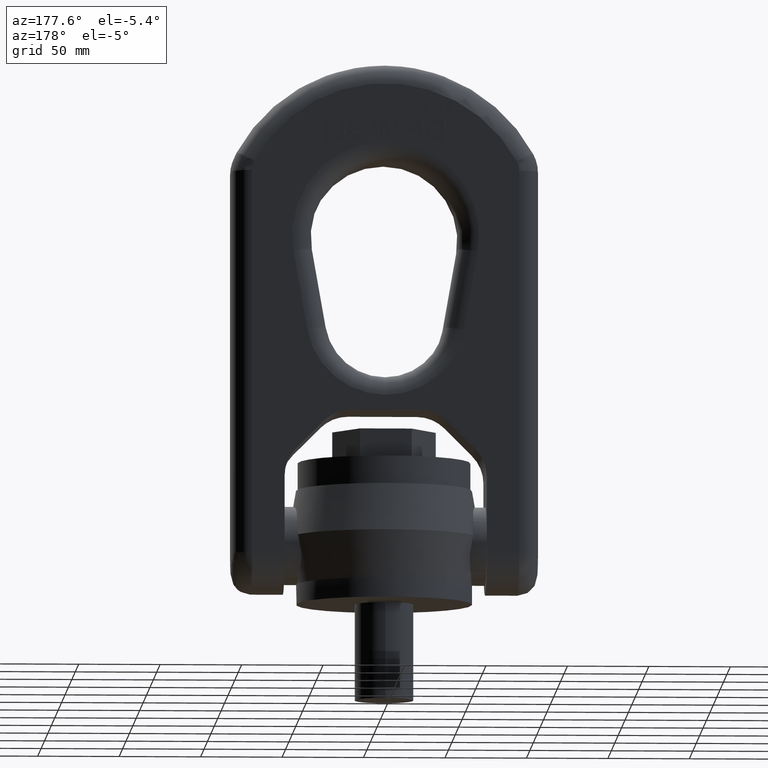
[diagram: clean part render]
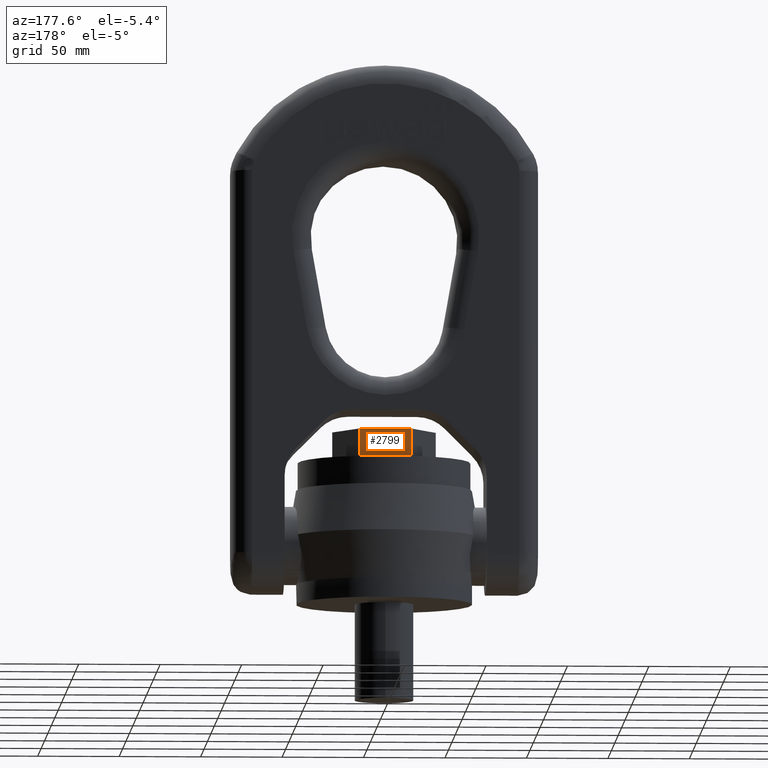
[diagram: same view with one face highlighted and labeled with its STEP entity id]
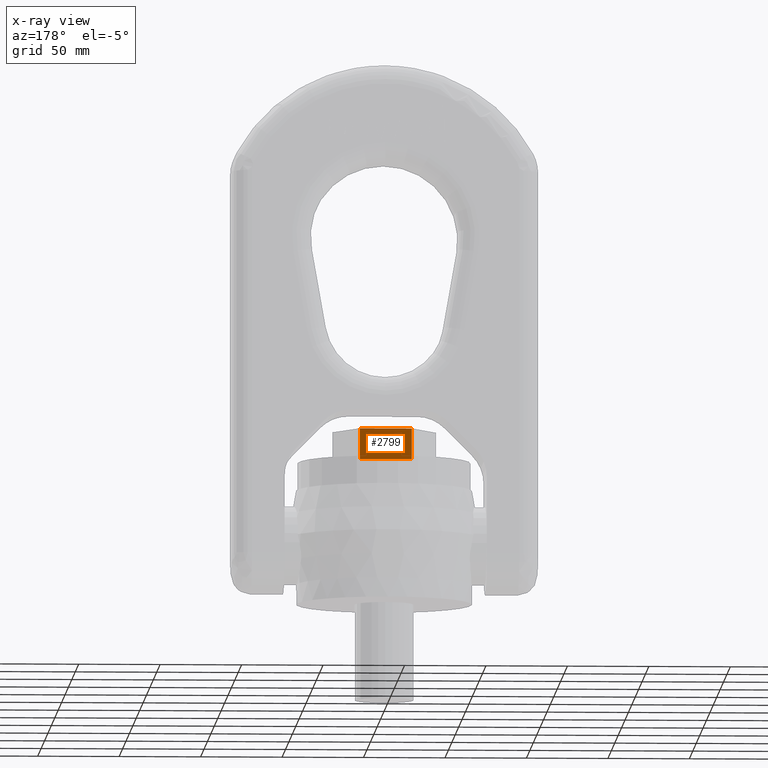
[diagram: x-ray of the same camera — body ghosted, the highlighted face saturated]
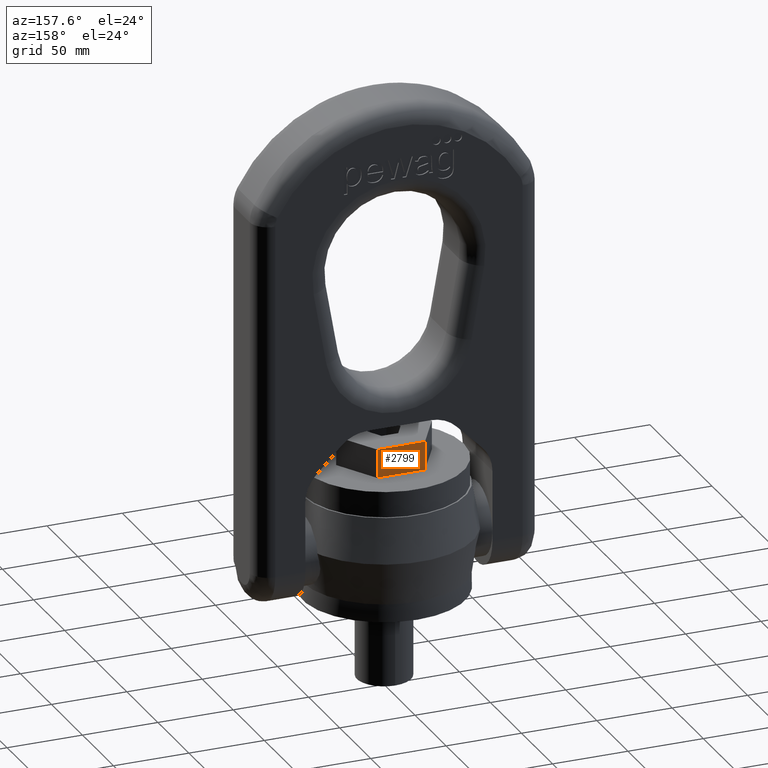
[diagram: same view with one face highlighted and labeled with its STEP entity id]
A machine part, auxiliary view. The second image highlights one B-rep face of the part: STEP entity #2799.
The next image is the same camera in x-ray: the body ghosted, the highlighted face saturated — about 0% of this face is hidden behind the body in this view.
A second angle (auxiliary view) of the same face is appended — the face is thin or edge-on in the first view.
In plain terms, the highlighted planar face has unit normal (0, -1, 0).
Its self-contained STEP definition (entity closure, byte-faithful):
#1731=LINE('',#6966,#2039);
#1742=LINE('',#6988,#2050);
#1744=LINE('',#6992,#2052);
#1745=LINE('',#6994,#2053);
#2039=VECTOR('',#6100,1.);
#2050=VECTOR('',#6119,1.);
#2052=VECTOR('',#6123,1.);
#2053=VECTOR('',#6124,1.);
#2442=FACE_OUTER_BOUND('',#3158,.T.);
#2673=PLANE('',#5849);
#2799=ADVANCED_FACE('',(#2442),#2673,.F.);
#3158=EDGE_LOOP('',(#3471,#3472,#3473,#3474));
#3471=ORIENTED_EDGE('',*,*,#5127,.T.);
#3472=ORIENTED_EDGE('',*,*,#5140,.F.);
#3473=ORIENTED_EDGE('',*,*,#5141,.F.);
#3474=ORIENTED_EDGE('',*,*,#5138,.T.);
#4707=VERTEX_POINT('',#6965);
#4708=VERTEX_POINT('',#6967);
#4715=VERTEX_POINT('',#6989);
#4716=VERTEX_POINT('',#6993);
#5127=EDGE_CURVE('',#4708,#4707,#1731,.T.);
#5138=EDGE_CURVE('',#4715,#4708,#1742,.T.);
#5140=EDGE_CURVE('',#4716,#4707,#1744,.T.);
#5141=EDGE_CURVE('',#4715,#4716,#1745,.T.);
#5849=AXIS2_PLACEMENT_3D('',#6995,#6125,#6126);
#6100=DIRECTION('',(-1.,0.,0.));
#6119=DIRECTION('',(0.,0.,-1.));
#6123=DIRECTION('',(0.,0.,-1.));
#6124=DIRECTION('',(-1.,0.,0.));
#6125=DIRECTION('',(0.,-1.,0.));
#6126=DIRECTION('',(0.,0.,-1.));
#6965=CARTESIAN_POINT('',(-15.8771324027147,27.5,87.));
#6966=CARTESIAN_POINT('',(15.8771324027147,27.5,87.));
#6967=CARTESIAN_POINT('',(15.8771324027147,27.5,87.));
#6988=CARTESIAN_POINT('',(15.8771324027147,27.5,106.));
#6989=CARTESIAN_POINT('',(15.8771324027147,27.5,106.));
#6992=CARTESIAN_POINT('',(-15.8771324027147,27.5,106.));
#6993=CARTESIAN_POINT('',(-15.8771324027147,27.5,106.));
#6994=CARTESIAN_POINT('',(15.8771324027147,27.5,106.));
#6995=CARTESIAN_POINT('',(15.8771324027147,27.5,106.));